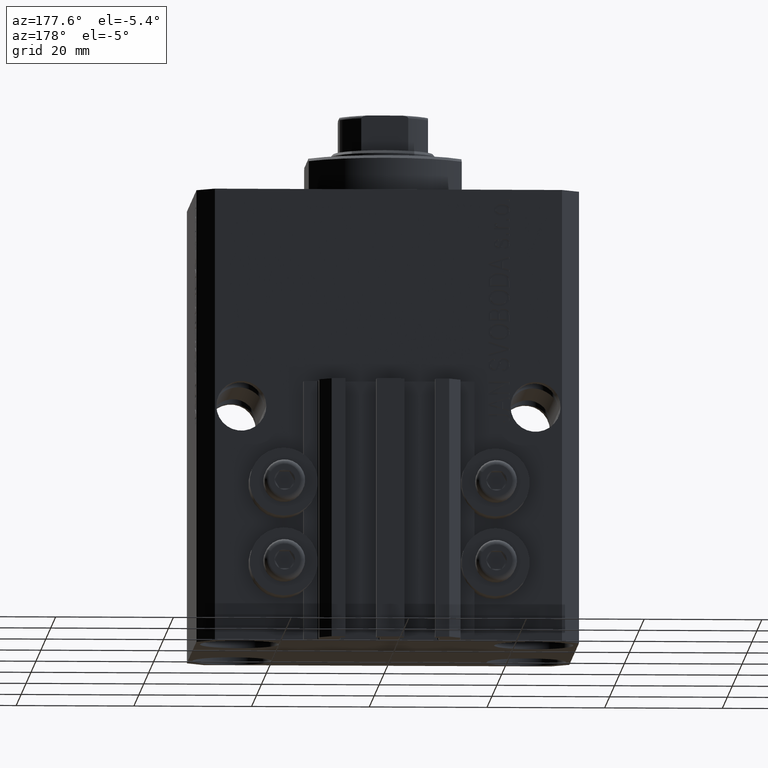
[diagram: clean part render]
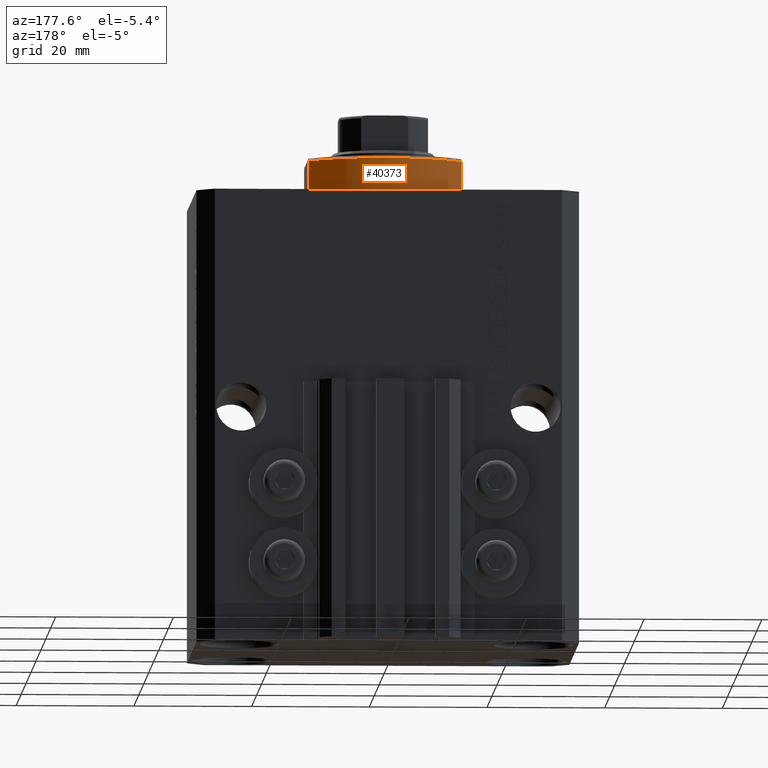
[diagram: same view with one face highlighted and labeled with its STEP entity id]
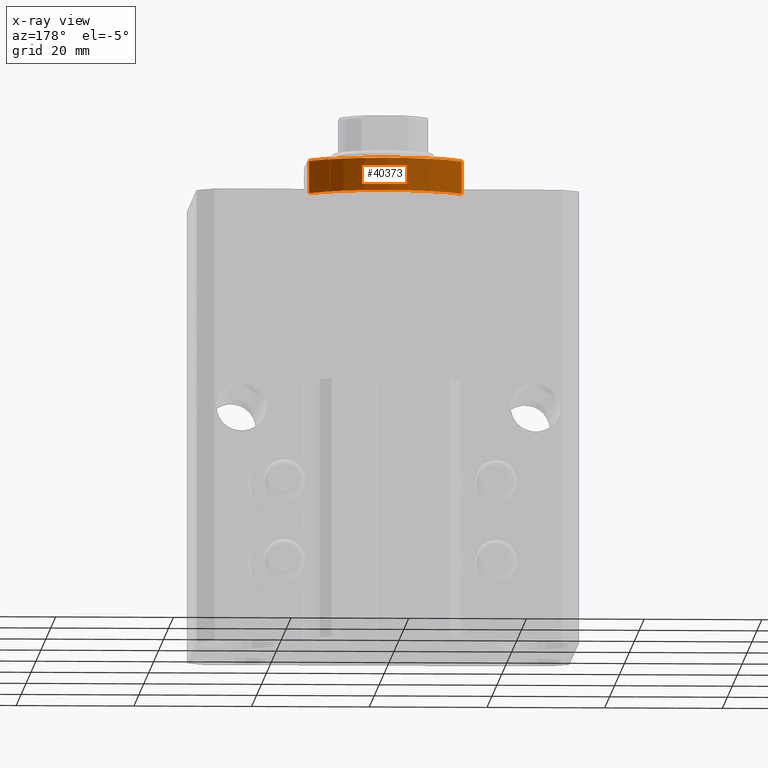
[diagram: x-ray of the same camera — body ghosted, the highlighted face saturated]
A machine part, auxiliary view. The second image highlights one B-rep face of the part: STEP entity #40373.
The next image is the same camera in x-ray: the body ghosted, the highlighted face saturated — about 0% of this face is hidden behind the body in this view.
In plain terms, the highlighted cylindrical surface (partial cylindrical patch) has radius 16 mm, axis along (0, 0, -1).
Its self-contained STEP definition (entity closure, byte-faithful):
#468 = DIRECTION ( 'NONE',  ( 1.000000000000000000, -8.881784197001252323E-16, 0.000000000000000000 ) ) ;
#2595 = AXIS2_PLACEMENT_3D ( 'NONE', #19740, #8045, #8283 ) ;
#4040 = DIRECTION ( 'NONE',  ( -0.000000000000000000, -0.000000000000000000, -1.000000000000000000 ) ) ;
#8019 = CARTESIAN_POINT ( 'NONE',  ( 0.000000000000000000, 0.000000000000000000, -6.500000000000000000 ) ) ;
#8045 = DIRECTION ( 'NONE',  ( 0.000000000000000000, 0.000000000000000000, 1.000000000000000000 ) ) ;
#8283 = DIRECTION ( 'NONE',  ( -1.000000000000000000, 0.000000000000000000, 0.000000000000000000 ) ) ;
#9167 = CARTESIAN_POINT ( 'NONE',  ( -13.00000000000000000, 9.327379053088815652, -0.4999999999999995559 ) ) ;
#10076 = VERTEX_POINT ( 'NONE', #30179 ) ;
#12241 = EDGE_CURVE ( 'NONE', #43760, #22747, #46887, .T. ) ;
#13302 = DIRECTION ( 'NONE',  ( -0.000000000000000000, -0.000000000000000000, 1.000000000000000000 ) ) ;
#15179 = DIRECTION ( 'NONE',  ( -0.000000000000000000, -0.000000000000000000, 1.000000000000000000 ) ) ;
#15335 = VECTOR ( 'NONE', #13302, 1000.000000000000000 ) ;
#16271 = CIRCLE ( 'NONE', #43671, 16.00000000000000000 ) ;
#17028 = CARTESIAN_POINT ( 'NONE',  ( 13.00000000000000000, 9.327379053088813876, -6.500000000000000000 ) ) ;
#19740 = CARTESIAN_POINT ( 'NONE',  ( 0.000000000000000000, 0.000000000000000000, -6.000000000000023981 ) ) ;
#20467 = CARTESIAN_POINT ( 'NONE',  ( -13.00000000000000000, 9.327379053088813876, -6.500000000000000000 ) ) ;
#20597 = EDGE_CURVE ( 'NONE', #22747, #36801, #16271, .T. ) ;
#21247 = ORIENTED_EDGE ( 'NONE', *, *, #42940, .F. ) ;
#21865 = CYLINDRICAL_SURFACE ( 'NONE', #33318, 16.00000000000000000 ) ;
#22318 = EDGE_CURVE ( 'NONE', #10076, #43760, #36908, .T. ) ;
#22724 = VECTOR ( 'NONE', #45881, 1000.000000000000000 ) ;
#22747 = VERTEX_POINT ( 'NONE', #9167 ) ;
#26089 = CARTESIAN_POINT ( 'NONE',  ( 13.00000000000000000, 9.327379053088815652, -0.4999999999999995559 ) ) ;
#26391 = DIRECTION ( 'NONE',  ( 1.000000000000000000, 0.000000000000000000, 0.000000000000000000 ) ) ;
#26516 = ORIENTED_EDGE ( 'NONE', *, *, #20597, .T. ) ;
#27087 = LINE ( 'NONE', #17028, #22724 ) ;
#30179 = CARTESIAN_POINT ( 'NONE',  ( 13.00000000000000000, 9.327379053088916905, -6.000000000000014211 ) ) ;
#31611 = CARTESIAN_POINT ( 'NONE',  ( -13.00000000000000000, 9.327379053088916905, -6.000000000000014211 ) ) ;
#32713 = CARTESIAN_POINT ( 'NONE',  ( 0.000000000000000000, 0.000000000000000000, -0.4999999999999995559 ) ) ;
#33318 = AXIS2_PLACEMENT_3D ( 'NONE', #8019, #15179, #26391 ) ;
#36801 = VERTEX_POINT ( 'NONE', #26089 ) ;
#36908 = CIRCLE ( 'NONE', #2595, 16.00000000000000000 ) ;
#38209 = ORIENTED_EDGE ( 'NONE', *, *, #12241, .T. ) ;
#40373 = ADVANCED_FACE ( 'NONE', ( #40451 ), #21865, .T. ) ;
#40451 = FACE_OUTER_BOUND ( 'NONE', #43879, .T. ) ;
#42940 = EDGE_CURVE ( 'NONE', #10076, #36801, #27087, .T. ) ;
#43671 = AXIS2_PLACEMENT_3D ( 'NONE', #32713, #4040, #468 ) ;
#43760 = VERTEX_POINT ( 'NONE', #31611 ) ;
#43879 = EDGE_LOOP ( 'NONE', ( #21247, #44229, #38209, #26516 ) ) ;
#44229 = ORIENTED_EDGE ( 'NONE', *, *, #22318, .T. ) ;
#45881 = DIRECTION ( 'NONE',  ( -0.000000000000000000, -0.000000000000000000, 1.000000000000000000 ) ) ;
#46887 = LINE ( 'NONE', #20467, #15335 ) ;